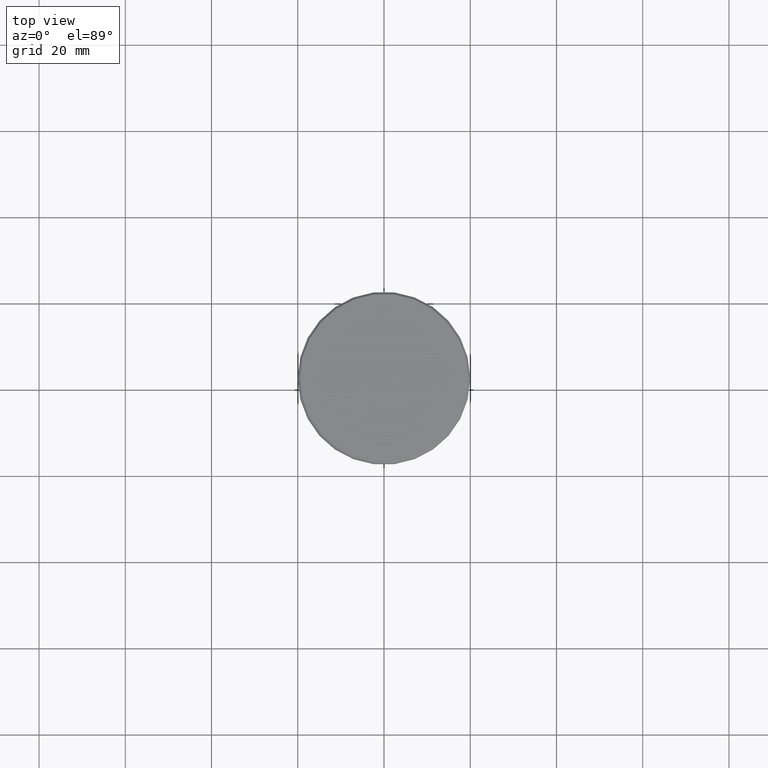
[diagram: clean part render]
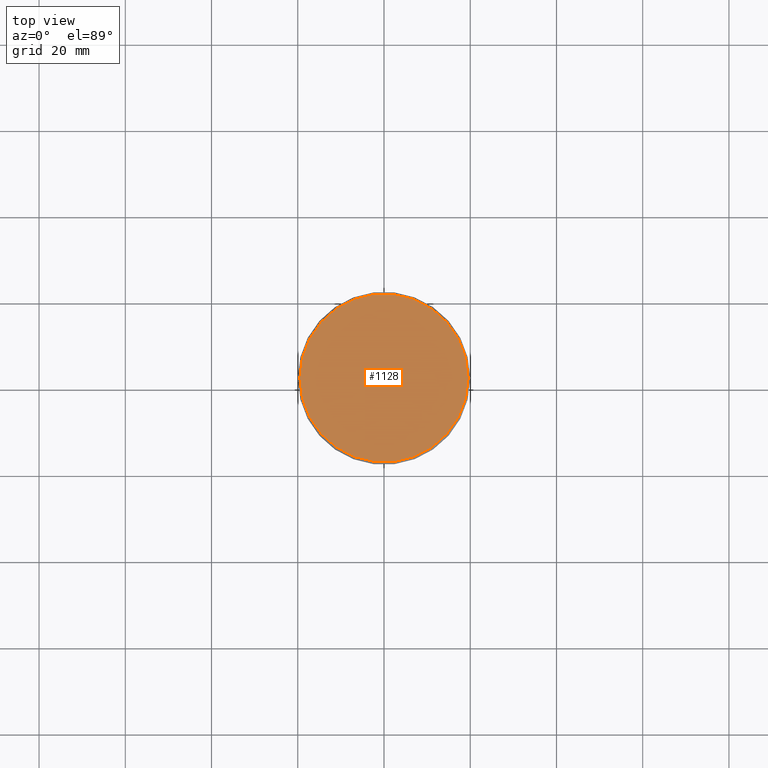
[diagram: same view with one face highlighted and labeled with its STEP entity id]
A machine part, top view. The second image highlights one B-rep face of the part: STEP entity #1128.
In plain terms, the highlighted planar face has unit normal (0, -0, 1).
Its self-contained STEP definition (entity closure, byte-faithful):
#35 = DIRECTION ( 'NONE',  ( 1.000000000000000000, 0.000000000000000000, 0.000000000000000000 ) ) ;
#45 = DIRECTION ( 'NONE',  ( 1.000000000000000000, 0.000000000000000000, 0.000000000000000000 ) ) ;
#127 = VERTEX_POINT ( 'NONE', #1114 ) ;
#178 = DIRECTION ( 'NONE',  ( -0.000000000000000000, -0.000000000000000000, 1.000000000000000000 ) ) ;
#216 = CARTESIAN_POINT ( 'NONE',  ( 19.49999999999996092, 2.418677428316020359E-15, 0.000000000000000000 ) ) ;
#243 = ORIENTED_EDGE ( 'NONE', *, *, #889, .T. ) ;
#292 = CARTESIAN_POINT ( 'NONE',  ( 0.000000000000000000, 0.000000000000000000, 0.000000000000000000 ) ) ;
#296 = DIRECTION ( 'NONE',  ( 0.000000000000000000, -0.000000000000000000, 1.000000000000000000 ) ) ;
#366 = AXIS2_PLACEMENT_3D ( 'NONE', #599, #178, #914 ) ;
#410 = EDGE_CURVE ( 'NONE', #1017, #127, #1000, .T. ) ;
#497 = AXIS2_PLACEMENT_3D ( 'NONE', #292, #296, #35 ) ;
#511 = AXIS2_PLACEMENT_3D ( 'NONE', #663, #1024, #45 ) ;
#566 = FACE_OUTER_BOUND ( 'NONE', #999, .T. ) ;
#599 = CARTESIAN_POINT ( 'NONE',  ( 0.000000000000000000, 0.000000000000000000, 0.000000000000000000 ) ) ;
#663 = CARTESIAN_POINT ( 'NONE',  ( 0.000000000000000000, 0.000000000000000000, 0.000000000000000000 ) ) ;
#773 = ORIENTED_EDGE ( 'NONE', *, *, #410, .T. ) ;
#889 = EDGE_CURVE ( 'NONE', #127, #1017, #1040, .T. ) ;
#914 = DIRECTION ( 'NONE',  ( 1.000000000000000000, 0.000000000000000000, 0.000000000000000000 ) ) ;
#999 = EDGE_LOOP ( 'NONE', ( #243, #773 ) ) ;
#1000 = CIRCLE ( 'NONE', #511, 19.49999999999996092 ) ;
#1017 = VERTEX_POINT ( 'NONE', #216 ) ;
#1024 = DIRECTION ( 'NONE',  ( -0.000000000000000000, -0.000000000000000000, 1.000000000000000000 ) ) ;
#1040 = CIRCLE ( 'NONE', #366, 19.49999999999996092 ) ;
#1113 = PLANE ( 'NONE',  #497 ) ;
#1114 = CARTESIAN_POINT ( 'NONE',  ( -19.49999999999996092, 0.000000000000000000, 0.000000000000000000 ) ) ;
#1128 = ADVANCED_FACE ( 'NONE', ( #566 ), #1113, .T. ) ;